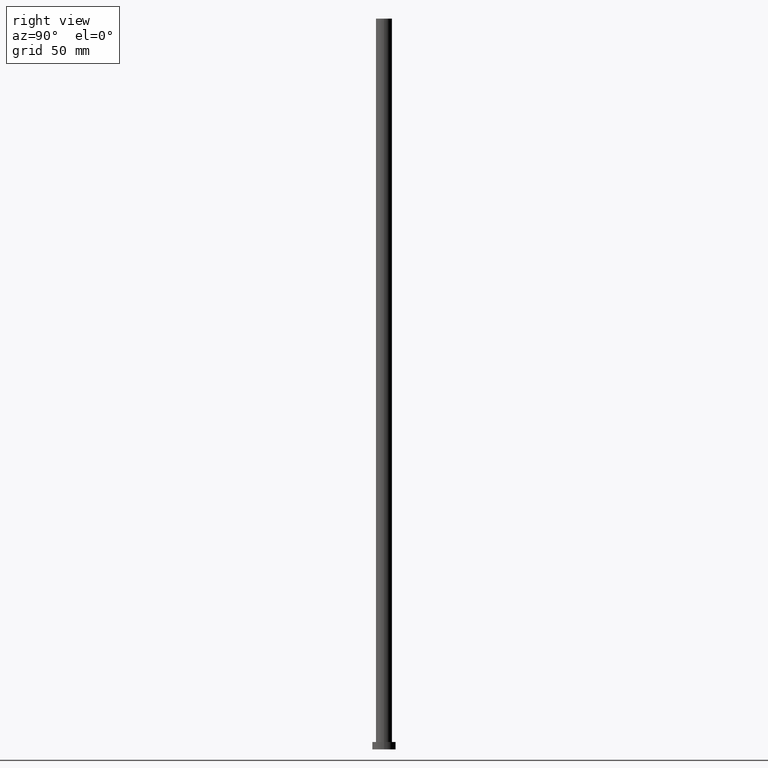
[diagram: clean part render]
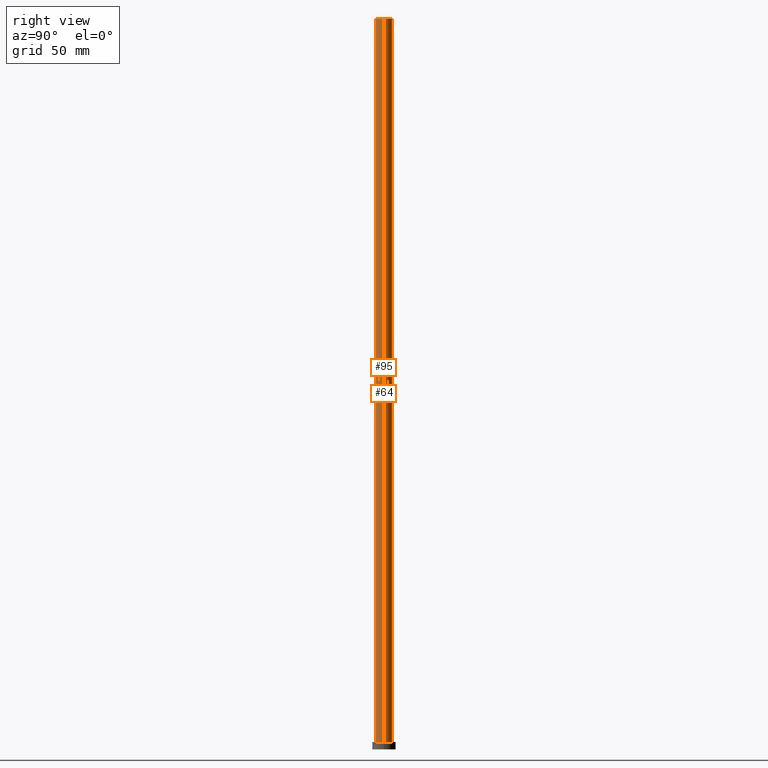
[diagram: same view with one multi-face feature highlighted, each face labeled with its STEP entity id]
A machine part, right view. The highlighted faces form ONE feature: a constant-radius fillet chain: 2 tangent blend faces with common blend radius 5.5 mm. The faces share edges in the B-rep.
Their STEP definitions:
[1] entity #64 (Cylinder):
#12 = CARTESIAN_POINT ( 'NONE',  ( 5.500000000000000000, 6.735557395310442023E-16, 500.0000000000000000 ) ) ;
#17 = AXIS2_PLACEMENT_3D ( 'NONE', #54, #114, #134 ) ;
#20 = EDGE_CURVE ( 'NONE', #88, #172, #220, .T. ) ;
#23 = EDGE_CURVE ( 'NONE', #88, #194, #193, .T. ) ;
#34 = CARTESIAN_POINT ( 'NONE',  ( 0.000000000000000000, 0.000000000000000000, 500.0000000000000000 ) ) ;
#36 = CARTESIAN_POINT ( 'NONE',  ( 5.500000000000000000, 6.735557395310442023E-16, 5.000000000000000000 ) ) ;
#45 = LINE ( 'NONE', #81, #113 ) ;
#54 = CARTESIAN_POINT ( 'NONE',  ( 0.000000000000000000, 0.000000000000000000, 5.000000000000000000 ) ) ;
#63 = DIRECTION ( 'NONE',  ( -0.000000000000000000, -0.000000000000000000, -1.000000000000000000 ) ) ;
#64 = ADVANCED_FACE ( 'NONE', ( #227 ), #248, .T. ) ;
#66 = DIRECTION ( 'NONE',  ( -0.000000000000000000, -0.000000000000000000, -1.000000000000000000 ) ) ;
#68 = DIRECTION ( 'NONE',  ( -1.000000000000000000, 0.000000000000000000, 0.000000000000000000 ) ) ;
#75 = ORIENTED_EDGE ( 'NONE', *, *, #23, .T. ) ;
#78 = EDGE_CURVE ( 'NONE', #172, #219, #45, .T. ) ;
#79 = CIRCLE ( 'NONE', #17, 5.500000000000000000 ) ;
#81 = CARTESIAN_POINT ( 'NONE',  ( -5.500000000000000000, 0.000000000000000000, 500.0000000000000000 ) ) ;
#83 = DIRECTION ( 'NONE',  ( 0.000000000000000000, 0.000000000000000000, 1.000000000000000000 ) ) ;
#88 = VERTEX_POINT ( 'NONE', #163 ) ;
#113 = VECTOR ( 'NONE', #66, 1000.000000000000000 ) ;
#114 = DIRECTION ( 'NONE',  ( 0.000000000000000000, 0.000000000000000000, 1.000000000000000000 ) ) ;
#120 = ORIENTED_EDGE ( 'NONE', *, *, #176, .T. ) ;
#126 = CARTESIAN_POINT ( 'NONE',  ( -5.500000000000000000, 0.000000000000000000, 5.000000000000000000 ) ) ;
#134 = DIRECTION ( 'NONE',  ( 1.000000000000000000, 0.000000000000000000, 0.000000000000000000 ) ) ;
#146 = ORIENTED_EDGE ( 'NONE', *, *, #78, .F. ) ;
#158 = VECTOR ( 'NONE', #224, 1000.000000000000000 ) ;
#163 = CARTESIAN_POINT ( 'NONE',  ( 5.500000000000000000, 6.735557395310442023E-16, 500.0000000000000000 ) ) ;
#172 = VERTEX_POINT ( 'NONE', #237 ) ;
#176 = EDGE_CURVE ( 'NONE', #194, #219, #79, .T. ) ;
#181 = ORIENTED_EDGE ( 'NONE', *, *, #20, .F. ) ;
#182 = AXIS2_PLACEMENT_3D ( 'NONE', #192, #63, #68 ) ;
#192 = CARTESIAN_POINT ( 'NONE',  ( 0.000000000000000000, 0.000000000000000000, 500.0000000000000000 ) ) ;
#193 = LINE ( 'NONE', #12, #158 ) ;
#194 = VERTEX_POINT ( 'NONE', #36 ) ;
#213 = DIRECTION ( 'NONE',  ( 1.000000000000000000, 0.000000000000000000, 0.000000000000000000 ) ) ;
#217 = EDGE_LOOP ( 'NONE', ( #181, #75, #120, #146 ) ) ;
#219 = VERTEX_POINT ( 'NONE', #126 ) ;
#220 = CIRCLE ( 'NONE', #222, 5.500000000000000000 ) ;
#222 = AXIS2_PLACEMENT_3D ( 'NONE', #34, #83, #213 ) ;
#224 = DIRECTION ( 'NONE',  ( -0.000000000000000000, -0.000000000000000000, -1.000000000000000000 ) ) ;
#227 = FACE_OUTER_BOUND ( 'NONE', #217, .T. ) ;
#237 = CARTESIAN_POINT ( 'NONE',  ( -5.500000000000000000, 0.000000000000000000, 500.0000000000000000 ) ) ;
#248 = CYLINDRICAL_SURFACE ( 'NONE', #182, 5.500000000000000000 ) ;
[2] entity #95 (Cylinder):
#4 = EDGE_CURVE ( 'NONE', #172, #88, #230, .T. ) ;
#10 = DIRECTION ( 'NONE',  ( 0.000000000000000000, 0.000000000000000000, 1.000000000000000000 ) ) ;
#12 = CARTESIAN_POINT ( 'NONE',  ( 5.500000000000000000, 6.735557395310442023E-16, 500.0000000000000000 ) ) ;
#23 = EDGE_CURVE ( 'NONE', #88, #194, #193, .T. ) ;
#30 = CARTESIAN_POINT ( 'NONE',  ( 0.000000000000000000, 0.000000000000000000, 500.0000000000000000 ) ) ;
#36 = CARTESIAN_POINT ( 'NONE',  ( 5.500000000000000000, 6.735557395310442023E-16, 5.000000000000000000 ) ) ;
#43 = CARTESIAN_POINT ( 'NONE',  ( 0.000000000000000000, 0.000000000000000000, 500.0000000000000000 ) ) ;
#45 = LINE ( 'NONE', #81, #113 ) ;
#53 = EDGE_CURVE ( 'NONE', #219, #194, #241, .T. ) ;
#66 = DIRECTION ( 'NONE',  ( -0.000000000000000000, -0.000000000000000000, -1.000000000000000000 ) ) ;
#67 = EDGE_LOOP ( 'NONE', ( #174, #225, #108, #190 ) ) ;
#71 = DIRECTION ( 'NONE',  ( 1.000000000000000000, 0.000000000000000000, 0.000000000000000000 ) ) ;
#78 = EDGE_CURVE ( 'NONE', #172, #219, #45, .T. ) ;
#81 = CARTESIAN_POINT ( 'NONE',  ( -5.500000000000000000, 0.000000000000000000, 500.0000000000000000 ) ) ;
#88 = VERTEX_POINT ( 'NONE', #163 ) ;
#91 = AXIS2_PLACEMENT_3D ( 'NONE', #30, #10, #71 ) ;
#95 = ADVANCED_FACE ( 'NONE', ( #154 ), #252, .T. ) ;
#96 = AXIS2_PLACEMENT_3D ( 'NONE', #43, #122, #250 ) ;
#107 = DIRECTION ( 'NONE',  ( 0.000000000000000000, 0.000000000000000000, 1.000000000000000000 ) ) ;
#108 = ORIENTED_EDGE ( 'NONE', *, *, #78, .T. ) ;
#113 = VECTOR ( 'NONE', #66, 1000.000000000000000 ) ;
#122 = DIRECTION ( 'NONE',  ( -0.000000000000000000, -0.000000000000000000, -1.000000000000000000 ) ) ;
#126 = CARTESIAN_POINT ( 'NONE',  ( -5.500000000000000000, 0.000000000000000000, 5.000000000000000000 ) ) ;
#154 = FACE_OUTER_BOUND ( 'NONE', #67, .T. ) ;
#158 = VECTOR ( 'NONE', #224, 1000.000000000000000 ) ;
#163 = CARTESIAN_POINT ( 'NONE',  ( 5.500000000000000000, 6.735557395310442023E-16, 500.0000000000000000 ) ) ;
#166 = DIRECTION ( 'NONE',  ( 1.000000000000000000, 0.000000000000000000, 0.000000000000000000 ) ) ;
#172 = VERTEX_POINT ( 'NONE', #237 ) ;
#174 = ORIENTED_EDGE ( 'NONE', *, *, #23, .F. ) ;
#179 = AXIS2_PLACEMENT_3D ( 'NONE', #233, #107, #166 ) ;
#190 = ORIENTED_EDGE ( 'NONE', *, *, #53, .T. ) ;
#193 = LINE ( 'NONE', #12, #158 ) ;
#194 = VERTEX_POINT ( 'NONE', #36 ) ;
#219 = VERTEX_POINT ( 'NONE', #126 ) ;
#224 = DIRECTION ( 'NONE',  ( -0.000000000000000000, -0.000000000000000000, -1.000000000000000000 ) ) ;
#225 = ORIENTED_EDGE ( 'NONE', *, *, #4, .F. ) ;
#230 = CIRCLE ( 'NONE', #91, 5.500000000000000000 ) ;
#233 = CARTESIAN_POINT ( 'NONE',  ( 0.000000000000000000, 0.000000000000000000, 5.000000000000000000 ) ) ;
#237 = CARTESIAN_POINT ( 'NONE',  ( -5.500000000000000000, 0.000000000000000000, 500.0000000000000000 ) ) ;
#241 = CIRCLE ( 'NONE', #179, 5.500000000000000000 ) ;
#250 = DIRECTION ( 'NONE',  ( -1.000000000000000000, 0.000000000000000000, 0.000000000000000000 ) ) ;
#252 = CYLINDRICAL_SURFACE ( 'NONE', #96, 5.500000000000000000 ) ;